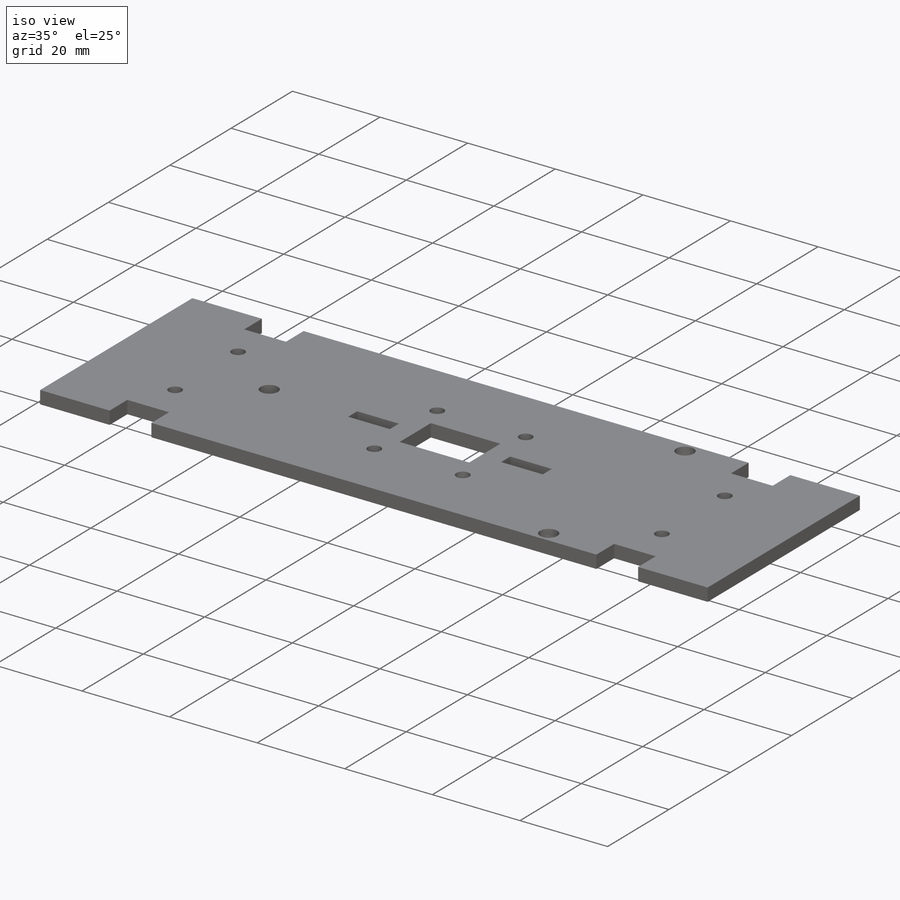
[diagram: iso view]
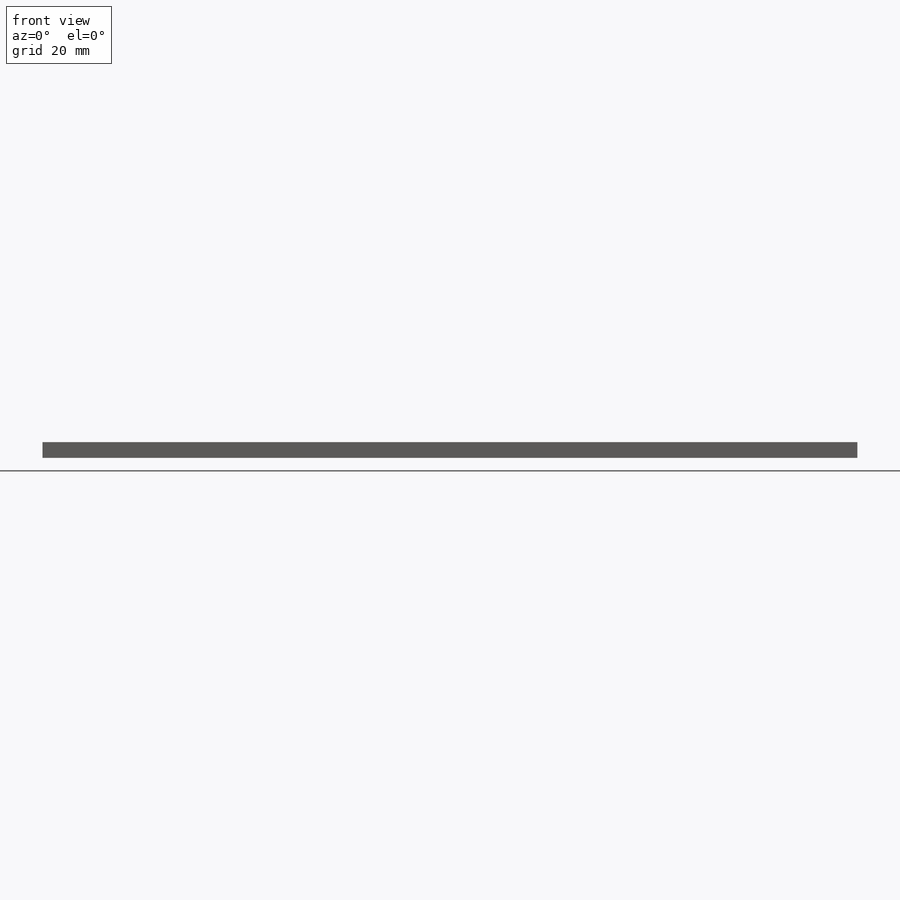
[diagram: front view]
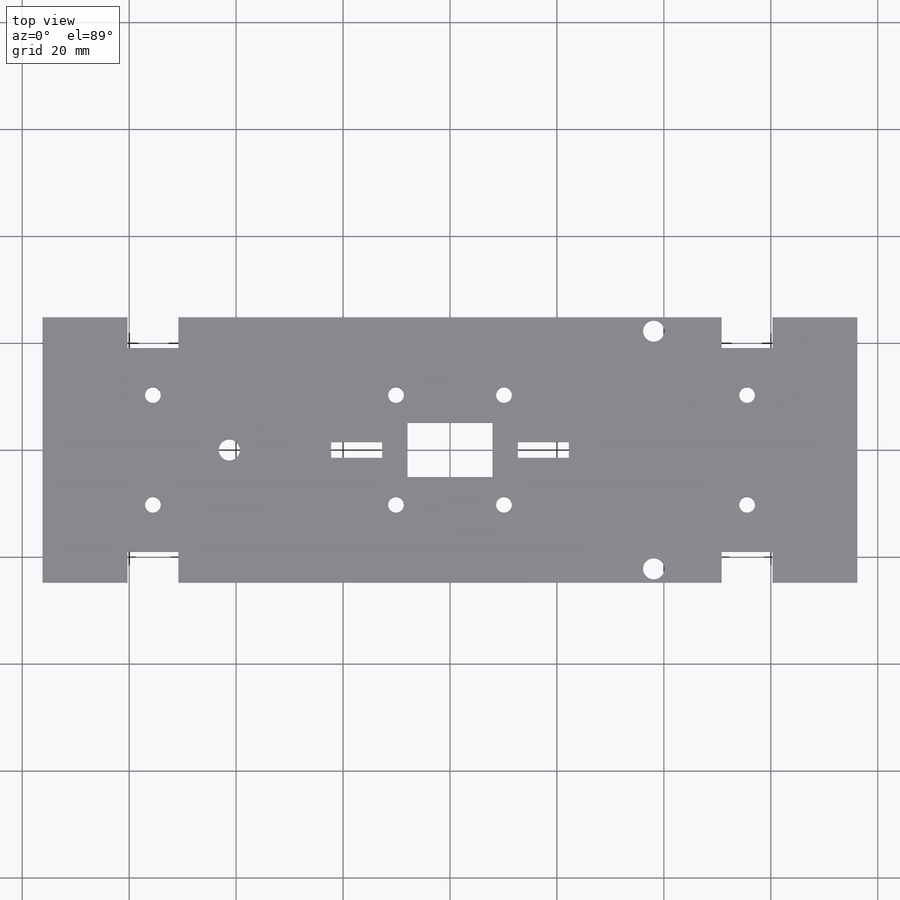
[diagram: top view]
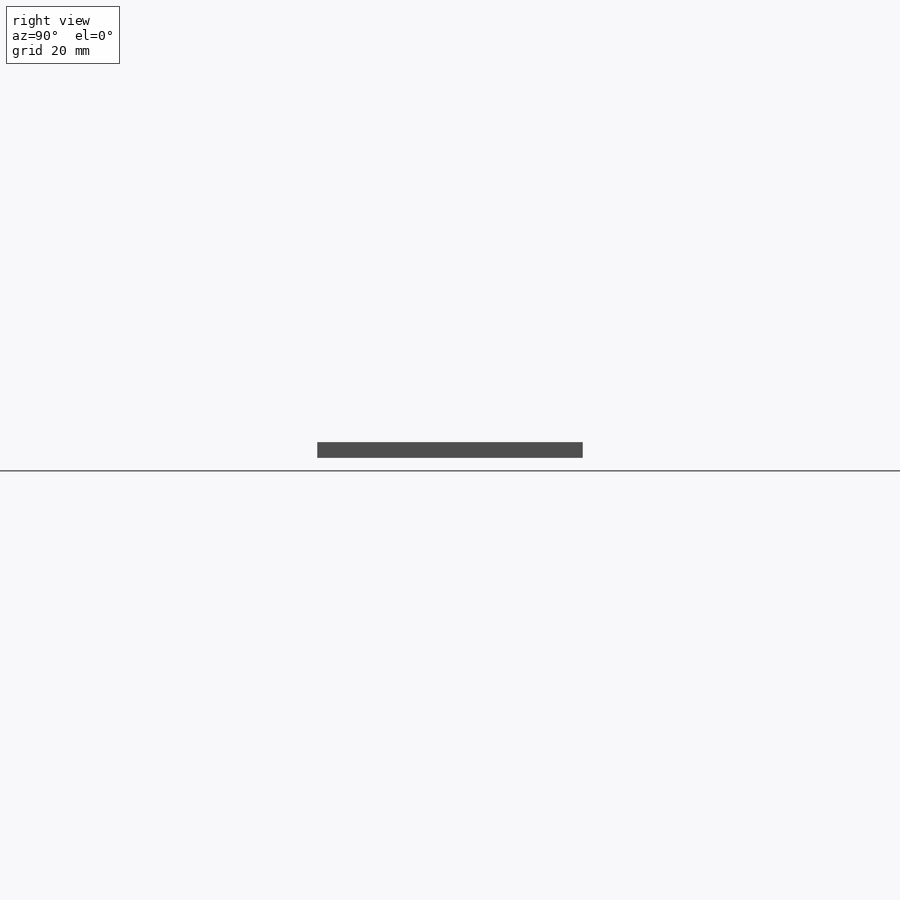
[diagram: right view]
SOLIDWORKS PART (.sldprt)
format: sldprt  version: not decoded by parser v0  size: 775,680 bytes
history: native  units: mm
features: sketch x9, hole x3, material x1, extrude x1, cut_extrude x1 (+12 scaffold rows collapsed)
feature tree (27):
  scaffold x12  (default folders/planes/origin — collapsed)
  material  "Material <not specified>"
  sketch  "Sketch2"  dims[c1.D1=43.942mm c1.D2=152.4mm c1.D3=2.9591mm c1.D4=9.525mm c1.D5=44.45mm c1.D6=5.7658mm c1.D7=9.525mm c1.D8=10.16mm c1.D9=15.875mm c2.D1=38.1mm c2.D10=101.6mm]
  extrude  "Boss-Extrude1"  Depth=2.9591mm
  hole  "#4 Clearance Hole1"  Diameter=2.9464mm Depth=3.302mm
  sketch  "Sketch4"  dims[c1.D1=7.366mm c1.D2=7.366mm c1.D3=~22.187017mm c1.D4=~112.497602mm c2.D3=~20.52955mm]
  sketch  "Sketch3"  dims[hole-wizard template sketch: 50 standard entries collapsed; hole parameters above]
  sketch  "Sketch5"  dims[D1=2.9464mm D2=9.525mm D3=41.275mm]
  hole  "#4 Clearance Hole2"  Diameter=3.9624mm Depth=3.302mm
  sketch  "Sketch7"
  sketch  "Sketch6"  dims[hole-wizard template sketch: 46 standard entries collapsed; hole parameters kept: c15.Hole Dia.=3.9624mm c15.Hole Depth=3.302mm c15.D3=~14.816244mm c15.Drill Angle=118.0deg]
  hole  "Tap Drill for #4 Helicoil1"  Diameter=3.9878mm Depth=5.588mm
  sketch  "Sketch9"  dims[D1=44.45mm D2=38.1mm]
  sketch  "Sketch8"  dims[hole-wizard template sketch: 46 standard entries collapsed; hole parameters kept: c15.Hole Dia.=3.9878mm c15.Hole Depth=5.588mm c15.D3=~14.816244mm c15.Drill Angle=118.0deg]
  sketch  "Sketch10"  dims[D1=4.7625mm]
  cut_extrude  "Cut-Extrude1"  [1 undecoded]
decode coverage: 12 of 14 modeling features carry decoded parameters
note: ~ marks probable driven/reference dimensions
note: 1 parameter value undecoded
note: suppression state not decoded; provenance and decode notes live in map.json
